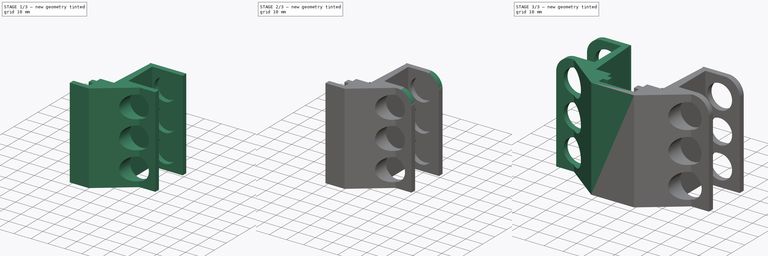
[diagram: build sequence overview — one tinted view per stage of 3, left to right]
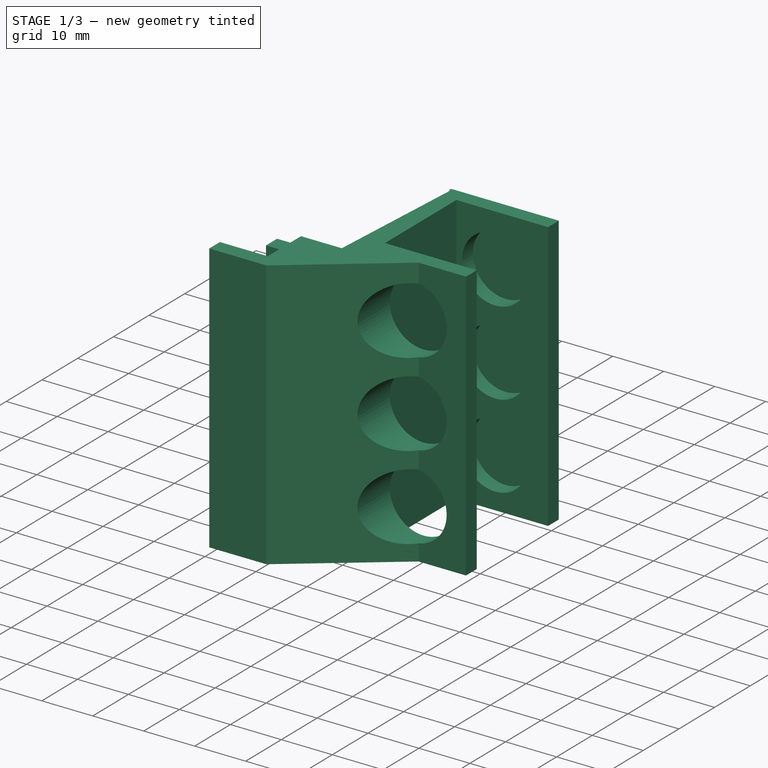
[diagram: stage 1 of 3 — iso view after this stage's code; geometry added in this stage tinted green]
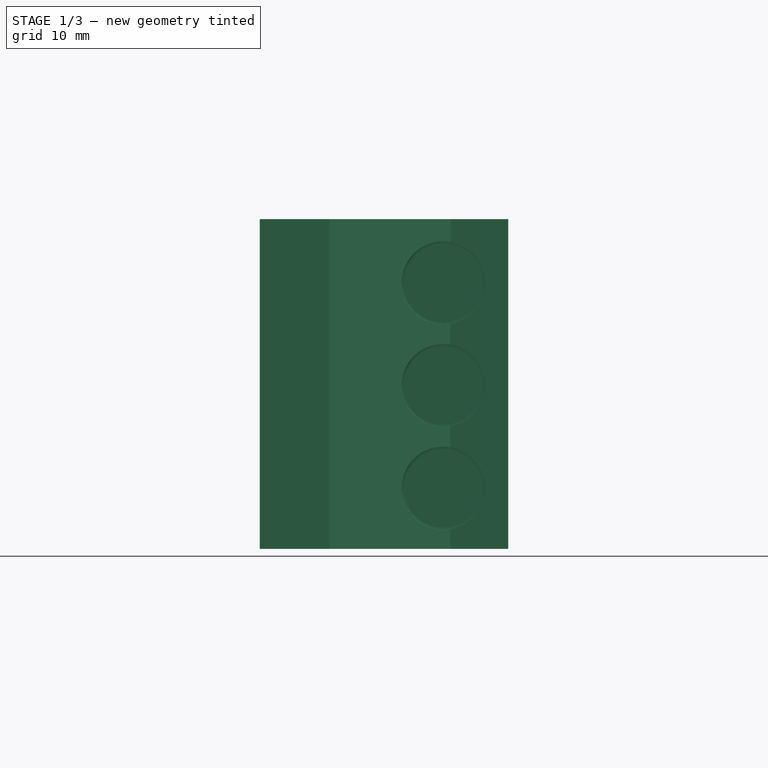
[diagram: stage 1 of 3 — front view after this stage's code; geometry added in this stage tinted green]
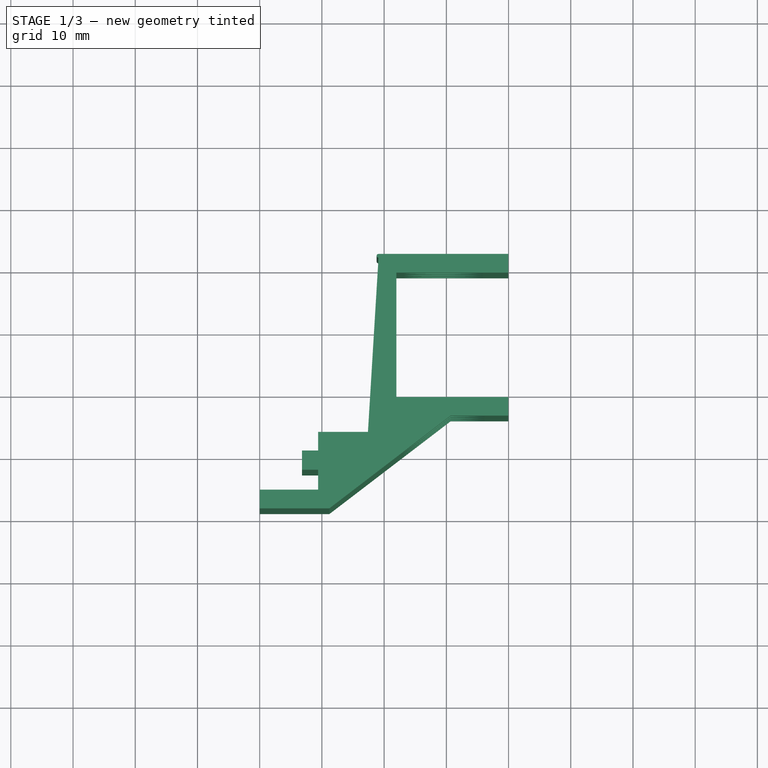
[diagram: stage 1 of 3 — top view after this stage's code; geometry added in this stage tinted green]
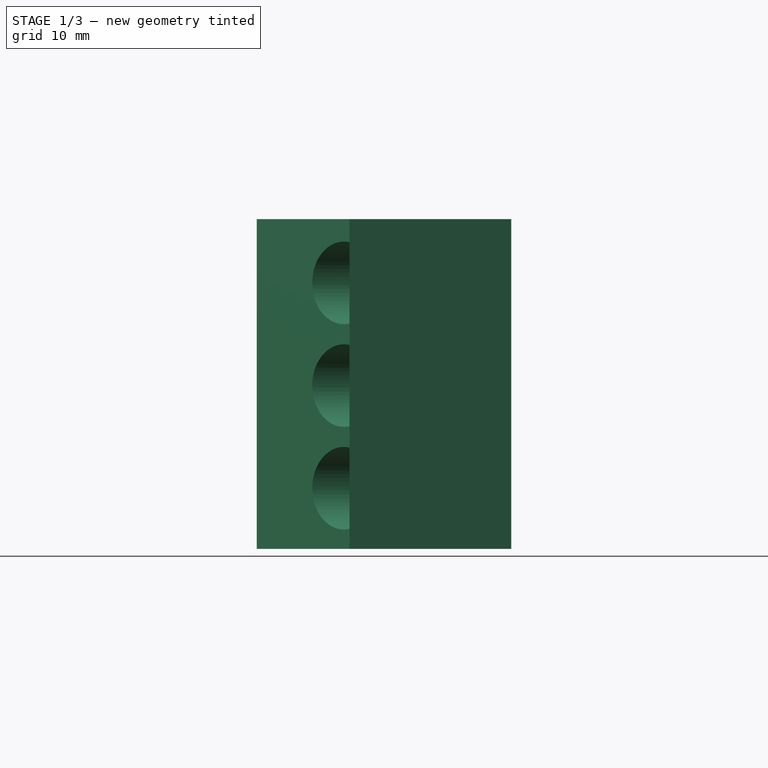
[diagram: stage 1 of 3 — right view after this stage's code; geometry added in this stage tinted green]
FCSTD DOCUMENT  (FreeCAD 1.0R39319 (Git))
Label: foam-dart-6-holder-nerf-rail-compatible
License: All rights reserved
LicenseURL: https://en.wikipedia.org/wiki/All_rights_reserved
objects: Sketcher::SketchObject×2, PartDesign::Hole×2, App::VarSet×1, PartDesign::Pad×1, PartDesign::Fillet×1, PartDesign::AdditiveSphere×1, PartDesign::Mirrored×1, PartDesign::Body×1
note: 22 computed .brp shape members not serialized (recipe doc carries the construction recipe); baked Part::Feature solids carry a one-line shape summary decoded from their .brp

FEATURE [Sketcher::SketchObject] Sketch
  ArcFitTolerance = 1e-06
  AttachmentSupport = -> [XY_Plane]
  FullyConstrained = false
  MakeInternals = false
  MapMode = 5
  expr: Constraints[21] = VarSet.Base_defaultThickness
  expr: Constraints[22] = VarSet.Base_sliderThickness - VarSet.tolerance
  expr: Constraints[23] = 3 mm + VarSet.tolerance
  expr: Constraints[24] = 2.8 mm - VarSet.tolerance
  expr: Constraints[25] = VarSet.Base_baseWidth + VarSet.tolerance
  expr: Constraints[48] = 38.2 / 2
  expr: Constraints[52] = VarSet.Base_defaultThickness
  expr: Constraints[53] = VarSet.Base_defaultThickness
  expr: Constraints[54] = VarSet.Base_defaultThickness
  expr: Constraints[56] = VarSet.Base_fullBaseWidth
  expr: Constraints[58] = VarSet.Base_defaultThickness * 2
  expr: Constraints[8] = VarSet.Base_baseWidth + 2 mm
  expr: Constraints[9] = VarSet.Base_baseWidth + VarSet.tolerance
  sketch-geometry (20):
    g0: LineSegment StartX=9.4 StartY=13.4971 StartZ=0 EndX=17.4 EndY=13.4971 EndZ=0
    g1: LineSegment StartX=30.6703 StartY=16.0971 StartZ=0 EndX=11.2 EndY=1.19712 EndZ=0
    g2: LineSegment StartX=9.4 StartY=4.19712 StartZ=0 EndX=0 EndY=4.19712 EndZ=0
    g3: LineSegment StartX=0 StartY=4.19712 StartZ=0 EndX=0 EndY=1.19712 EndZ=0
    g4: LineSegment StartX=0 StartY=1.19712 StartZ=0 EndX=11.2 EndY=1.19712 EndZ=0
    g5: LineSegment StartX=9.4 StartY=4.19712 StartZ=0 EndX=9.4 EndY=7.39712 EndZ=0
    g6: LineSegment StartX=9.4 StartY=7.39712 StartZ=0 EndX=6.8 EndY=7.39712 EndZ=0
    g7: LineSegment StartX=6.8 StartY=7.39712 StartZ=0 EndX=6.8 EndY=10.4971 EndZ=0
    g8: LineSegment StartX=6.8 StartY=10.4971 StartZ=0 EndX=9.4 EndY=10.4971 EndZ=0
    g9: LineSegment StartX=9.4 StartY=10.4971 StartZ=0 EndX=9.4 EndY=13.4971 EndZ=0
    g10: LineSegment StartX=17.4 StartY=13.4971 StartZ=0 EndX=19.1 EndY=41.4971 EndZ=0
    g11: LineSegment StartX=39.9598 StartY=42.0971 StartZ=0 EndX=39.9598 EndY=39.0971 EndZ=0
    g12: LineSegment StartX=39.9598 StartY=39.0971 StartZ=0 EndX=21.9598 EndY=39.0971 EndZ=0
    g13: LineSegment StartX=21.9598 StartY=39.0971 StartZ=0 EndX=21.9598 EndY=19.0971 EndZ=0
    g14: LineSegment StartX=21.9598 StartY=19.0971 StartZ=0 EndX=39.9598 EndY=19.0971 EndZ=0
    g15: LineSegment StartX=39.9598 StartY=19.0971 StartZ=0 EndX=39.9598 EndY=16.0971 EndZ=0
    g16: LineSegment StartX=39.9598 StartY=16.0971 StartZ=0 EndX=30.6703 EndY=16.0971 EndZ=0
    g17: ArcOfCircle CenterX=19.1 CenterY=41.7971 CenterZ=0 NormalX=0 NormalY=0 NormalZ=1 AngleXU=0 Radius=0.3 StartAngle=1.5708 EndAngle=4.71239
    g18: LineSegment [constr] StartX=19.1 StartY=41.4971 StartZ=0 EndX=19.1 EndY=42.0971 EndZ=0
    g19: LineSegment StartX=19.1 StartY=42.0971 StartZ=0 EndX=39.9598 EndY=42.0971 EndZ=0
  constraints (59):
    c: Horizontal(g0)
    c: PointOnObject(g2,g-2)
    c: Horizontal(g2)
    c: Coincident(g2,g3)
    c: PointOnObject(g3,g-2)
    c: Coincident(g3,g4)
    c: Coincident(g4,g1)
    c: Horizontal(g4)
    c: Distance(g4,g4) = 11.2
    c: Distance(g2,g2) = 9.4
    c: Coincident(g2,g5)
    c: Vertical(g5)
    c: Coincident(g5,g6)
    c: Horizontal(g6)
    c: Coincident(g6,g7)
    c: Vertical(g7)
    c: Coincident(g7,g8)
    c: Horizontal(g8)
    c: Coincident(g8,g9)
    c: Coincident(g9,g0)
    c: Vertical(g9)
    c: Distance(g3,g3) = 3
    c: Distance(g7,g7) = 3.1
    c: Distance(g5,g5) = 3.2
    c: Distance(g6,g6) = 2.6
    c: Distance(g9,g-2) = 9.4
    c: Vertical(g11)
    c: Coincident(g11,g12)
    c: Horizontal(g12)
    c: Coincident(g12,g13)
    c: Vertical(g13)
    c: Coincident(g13,g14)
    c: Horizontal(g14)
    c: Coincident(g14,g15)
    c: Vertical(g15)
    c: Coincident(g15,g16)
    c: Horizontal(g16)
    c: DistanceX(g0,g0) = 8
    c: Coincident(g16,g1)
    c: Coincident(g10,g0)
    c: DistanceY(g9,g9) = 3
    c: Distance(g10,g0) = 28
    c: Coincident(g17,g10)
    c: Coincident(g18,g10)
    c: Coincident(g18,g17)
    c: Vertical(g18)
    c: PointOnObject(g17,g18)
    c: DistanceY(g18,g18) = 0.6
    c: Distance(g10,g-2) = 19.1
    c: Coincident(g19,g17)
    c: Coincident(g19,g11)
    c: Horizontal(g19)
    c: Distance(g11,g11) = 3
    c: DistanceY(g15,g15) = 3
    c: Distance(g12,g10) = 3
    c: DistanceY(g13,g13) = 20
    c: DistanceX(g12,g12) = 18
    c: Equal(g12,g14)
    c: Distance(g0,g1) = 6
FEATURE [App::VarSet] VarSet
  Base_baseWidth = 9.2
  Base_defaultThickness = 3
  Base_fullBaseWidth = 18
  Base_holderDiamater = 12.8
  Base_sliderThickness = 3.3
  tolerance = 0.2
  expr: Base_baseWidth = Base_fullBaseWidth / 2 + tolerance
  expr: Base_sliderThickness = 3.5 mm - tolerance
FEATURE [PartDesign::Pad] Pad
  Direction = (0,0,1)
  Length = 53
  Length2 = 0
  Profile = -> Sketch
  ReferenceAxis = -> Sketch [N_Axis]
  Refine = true
  Suppressed = false
  Type = 0
FEATURE [Sketcher::SketchObject] Sketch001
  ArcFitTolerance = 1e-06
  ExternalGeometry = -> [Sketch]
  FullyConstrained = true
  MakeInternals = false
  MapMode = 5
  Placement = pos=(0,42.0783,0) rot=(0,0.707107,0.707107;3.14159rad)
  expr: Constraints[10] = VarSet.Base_defaultThickness
  expr: Constraints[11] = VarSet.Base_defaultThickness
  expr: Constraints[1] = VarSet.Base_defaultThickness
  sketch-geometry (4):
    g0: Circle CenterX=-29.5299 CenterY=9.75 CenterZ=0 NormalX=0 NormalY=0 NormalZ=1 AngleXU=0 Radius=6.75
    g1: LineSegment [constr] StartX=-29.5299 StartY=0 StartZ=0 EndX=-29.5299 EndY=53 EndZ=0
    g2: Circle CenterX=-29.5299 CenterY=26.25 CenterZ=0 NormalX=0 NormalY=0 NormalZ=1 AngleXU=0 Radius=6.75
    g3: Circle CenterX=-29.5299 CenterY=42.75 CenterZ=0 NormalX=0 NormalY=0 NormalZ=1 AngleXU=0 Radius=6.75
  constraints (12):
    c: Diameter(g0) = 13.5
    c: Distance(g0,g-1) = 3
    c: PointOnObject(g1,g-1)
    c: Vertical(g1)
    c: Symmetric(g-5,g-5,g1)
    c: PointOnObject(g0,g1)
    c: PointOnObject(g2,g1)
    c: PointOnObject(g3,g1)
    c: Equal(g0,g2)
    c: Equal(g0,g3)
    c: Distance(g0,g2) = 3
    c: Distance(g2,g3) = 3
FEATURE [PartDesign::Hole] Hole
  BaseFeature = -> Pad
  CustomThreadClearance = 0
  Depth = 35
  DepthType = 0
  Diameter = 12.8
  DrillForDepth = false
  DrillPoint = 1
  DrillPointAngle = 118
  HoleCutCountersinkAngle = 90
  HoleCutCustomValues = false
  HoleCutDepth = 0
  HoleCutDiameter = 0
  HoleCutType = 0
  ModelThread = false
  Profile = -> Sketch001
  Refine = true
  Suppressed = false
  Tapered = true
  TaperedAngle = 90.5
  ThreadClass = 0
  ThreadDepth = 35
  ThreadDepthType = 0
  ThreadDirection = 0
  ThreadFit = 0
  ThreadSize = 0
  ThreadType = 0
  Threaded = false
  UseCustomThreadClearance = false
  expr: Diameter = VarSet.Base_holderDiamater
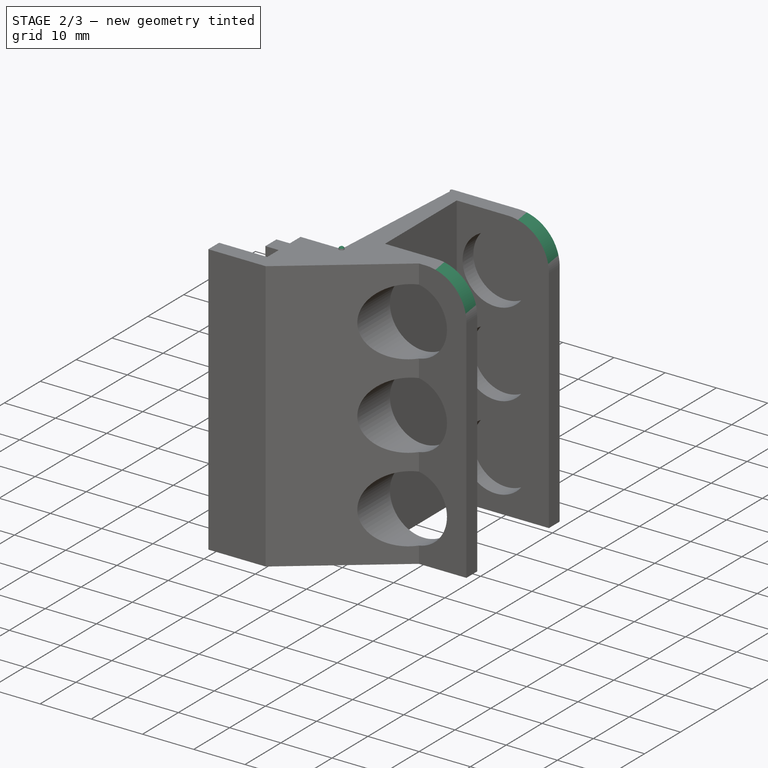
[diagram: stage 2 of 3 — iso view after this stage's code; geometry added in this stage tinted green]
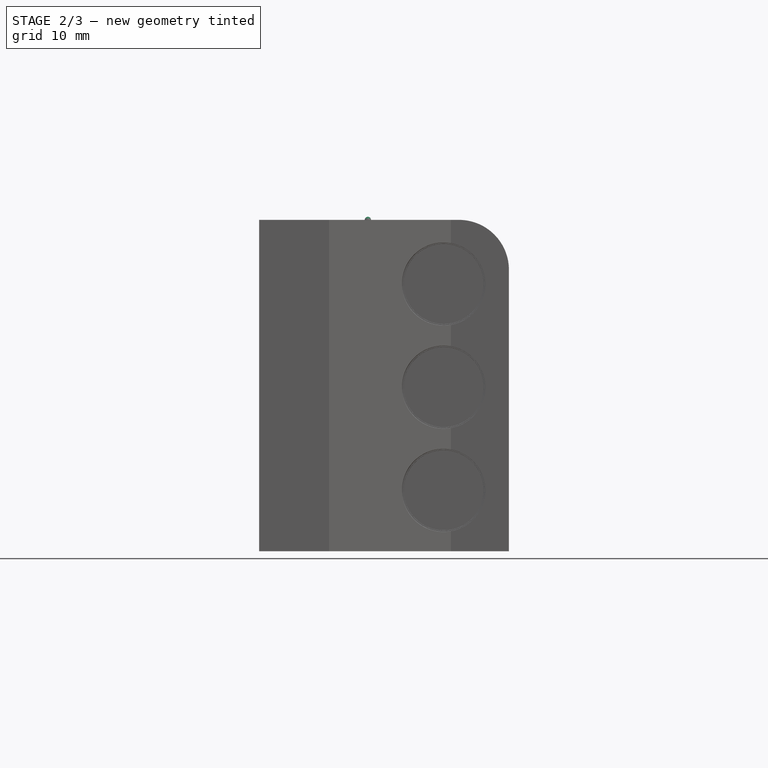
[diagram: stage 2 of 3 — front view after this stage's code; geometry added in this stage tinted green]
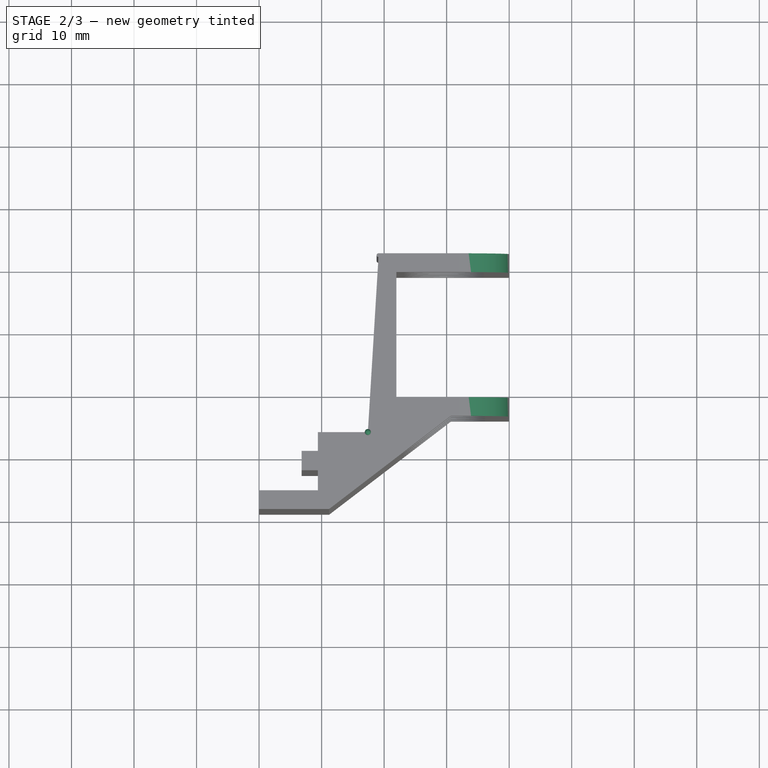
[diagram: stage 2 of 3 — top view after this stage's code; geometry added in this stage tinted green]
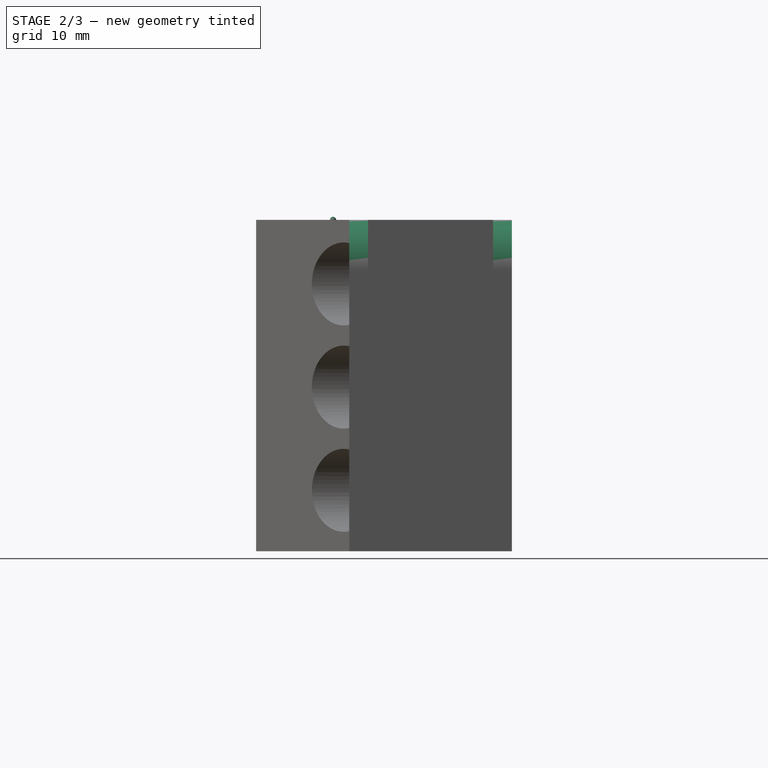
[diagram: stage 2 of 3 — right view after this stage's code; geometry added in this stage tinted green]
FEATURE [PartDesign::Fillet] Fillet
  Base = -> Hole [Edge34,Edge38]
  BaseFeature = -> Hole
  Radius = 8
  Refine = true
  SupportTransform = false
  Suppressed = false
  UseAllEdges = false
FEATURE [PartDesign::AdditiveSphere] Sphere
  Angle1 = -90
  Angle2 = 90
  Angle3 = 360
  AttacherType = Attacher::AttachEngine3D
  AttachmentSupport = -> [Fillet]
  BaseFeature = -> Fillet
  MapMode = 1
  Placement = pos=(17.4,13.4971,53) rot=(0,0,1;0rad)
  Radius = 0.5
  Refine = true
  Suppressed = false
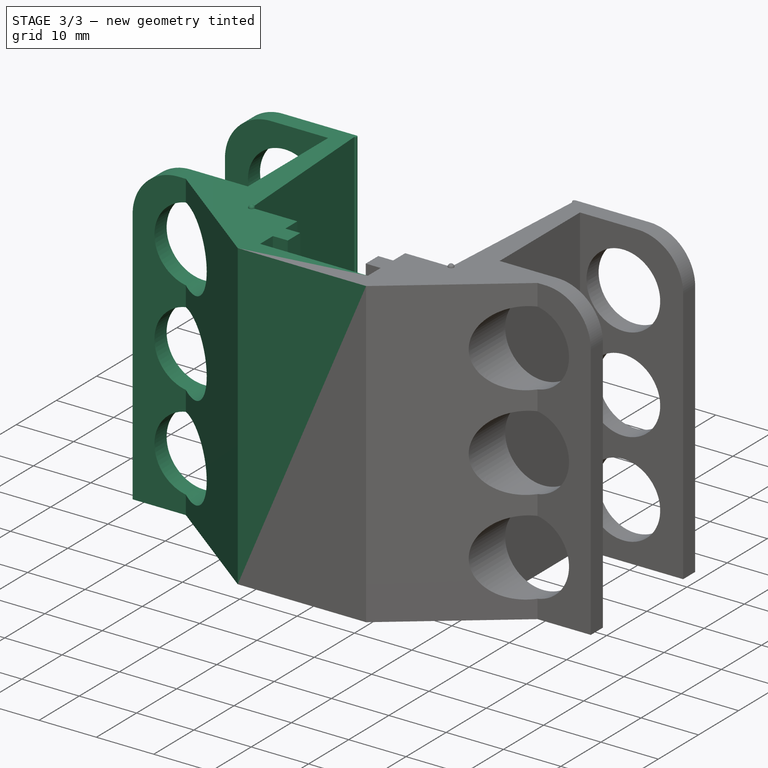
[diagram: stage 3 of 3 — iso view after this stage's code; geometry added in this stage tinted green]
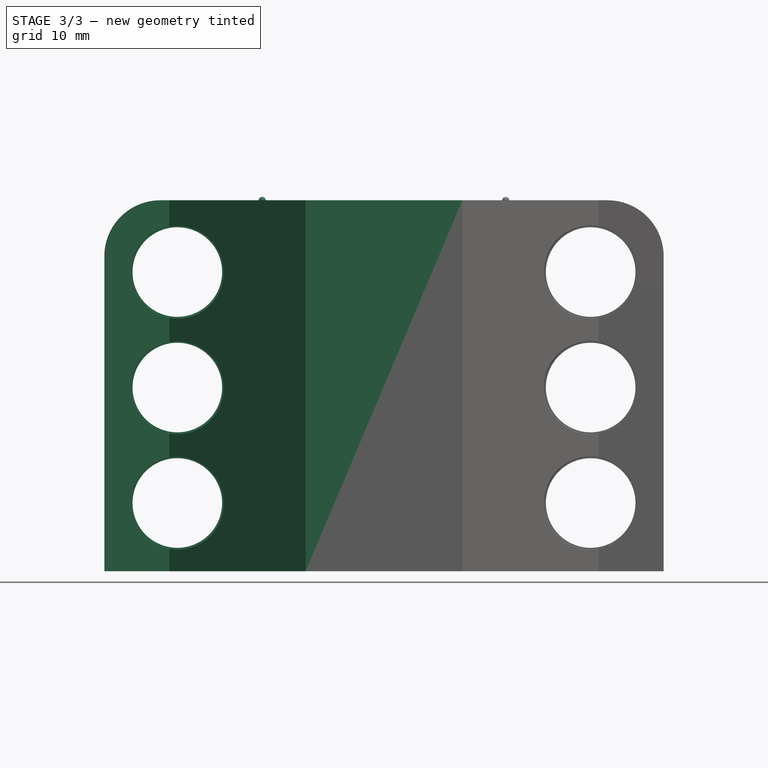
[diagram: stage 3 of 3 — front view after this stage's code; geometry added in this stage tinted green]
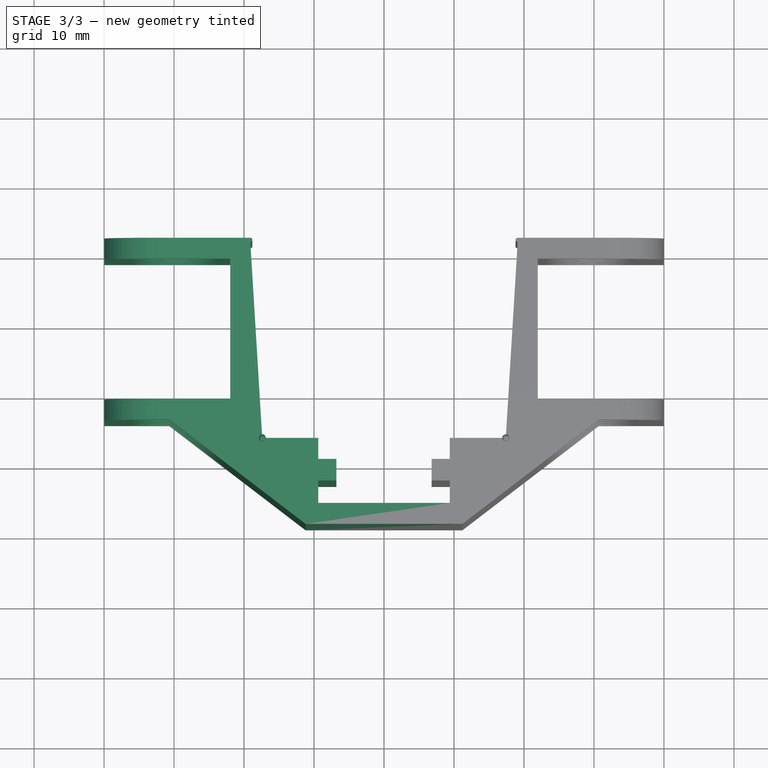
[diagram: stage 3 of 3 — top view after this stage's code; geometry added in this stage tinted green]
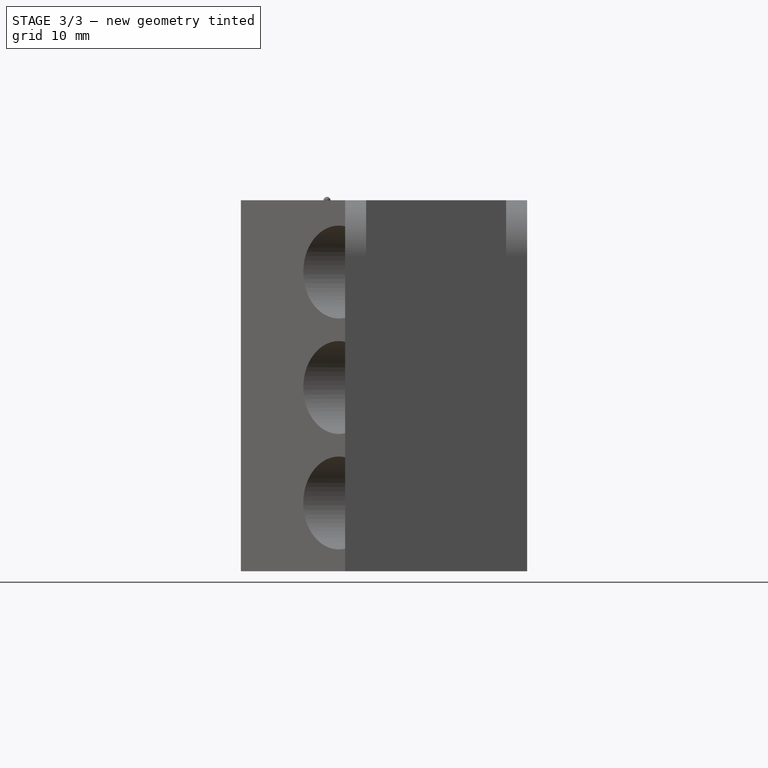
[diagram: stage 3 of 3 — right view after this stage's code; geometry added in this stage tinted green]
FEATURE [PartDesign::Hole] Hole001
  BaseFeature = -> Sphere
  CustomThreadClearance = 0
  Depth = 25
  DepthType = 0
  Diameter = 13.5
  DrillForDepth = false
  DrillPoint = 1
  DrillPointAngle = 118
  HoleCutCountersinkAngle = 90
  HoleCutCustomValues = false
  HoleCutDepth = 0
  HoleCutDiameter = 0
  HoleCutType = 0
  ModelThread = false
  Placement = pos=(17.4,13.4971,53) rot=(0,0,1;0rad)
  Profile = -> Sketch001
  Refine = true
  Reversed = true
  Suppressed = false
  Tapered = false
  TaperedAngle = 90
  ThreadClass = 0
  ThreadDepth = 25
  ThreadDepthType = 0
  ThreadDirection = 0
  ThreadFit = 0
  ThreadSize = 0
  ThreadType = 0
  Threaded = false
  UseCustomThreadClearance = false
FEATURE [PartDesign::Mirrored] Mirrored
  BaseFeature = -> Hole001
  MirrorPlane = -> YZ_Plane
  Placement = pos=(17.4,13.4971,53) rot=(0,0,1;0rad)
  Refine = true
  Suppressed = false
  TransformMode = 1
FEATURE [PartDesign::Body] Body
  AllowCompound = false
  Group = -> [Sketch,Pad,Sketch001,Hole,Fillet,Sphere,Hole001,Mirrored]
  Origin = -> Origin
  Tip = -> Mirrored
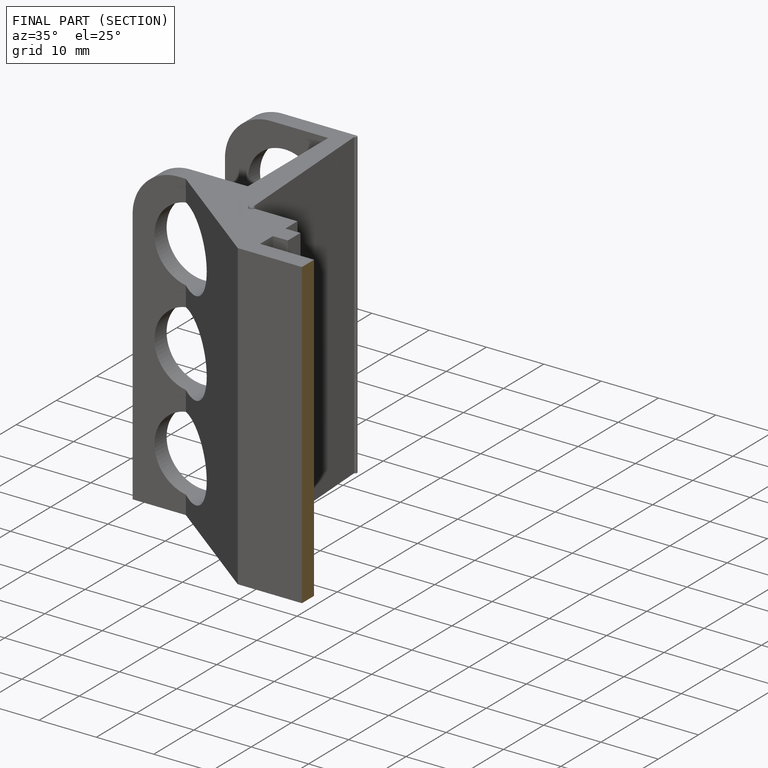
[diagram: finished part — half-section view (interior)]
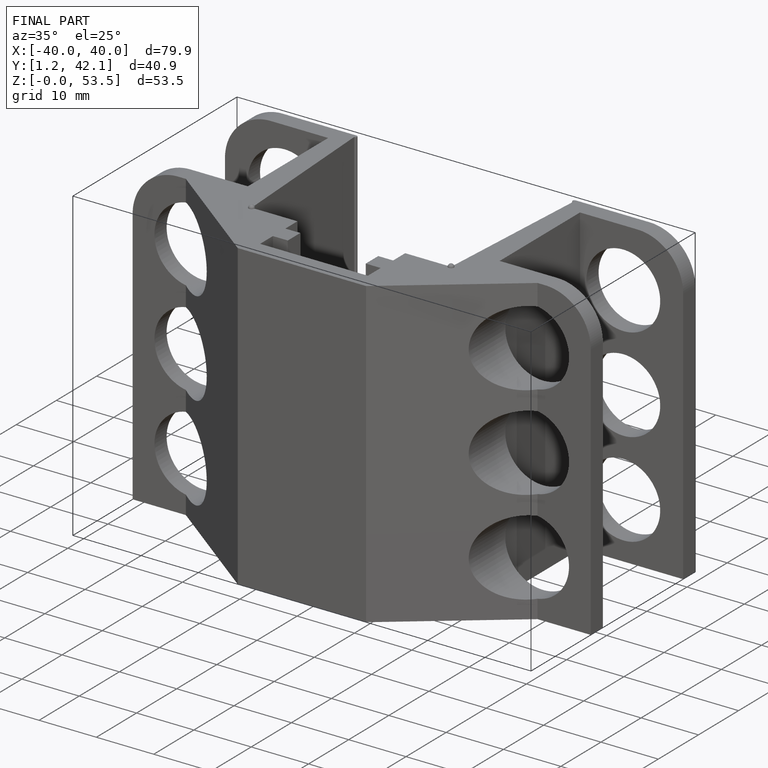
[diagram: finished part — iso view with bounding-box wireframe]
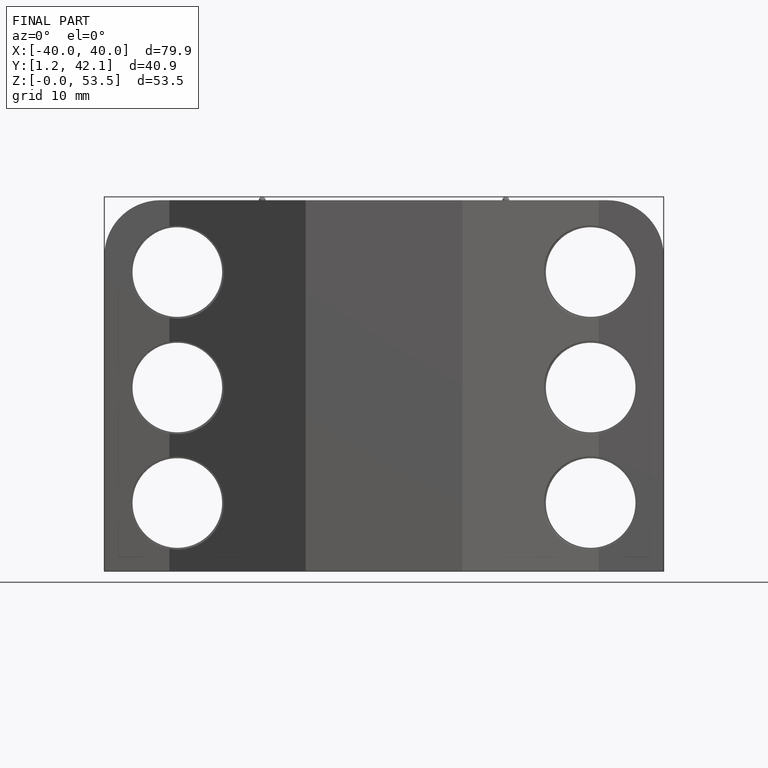
[diagram: finished part — front view with bounding-box wireframe]
